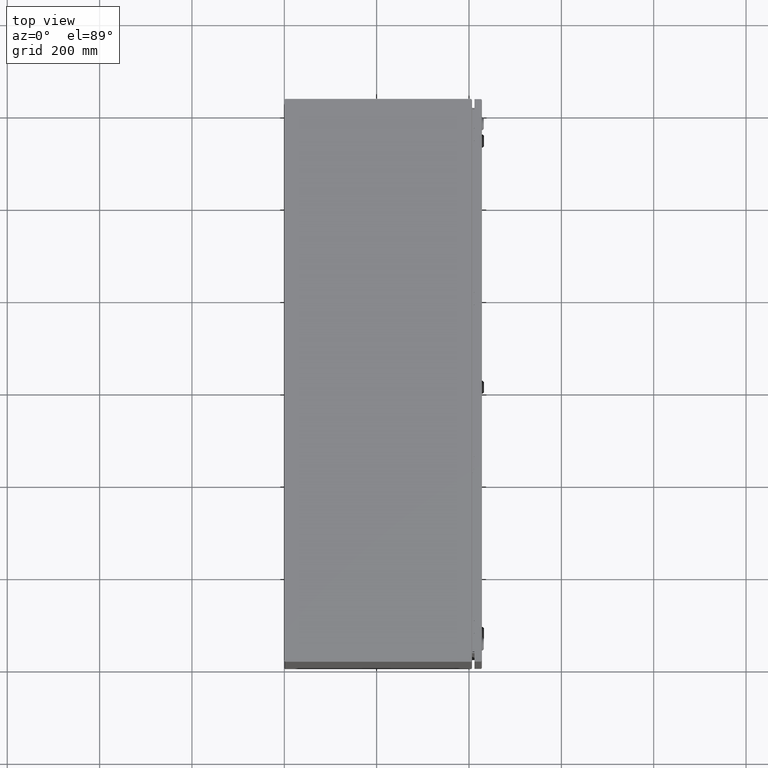
[diagram: clean part render]
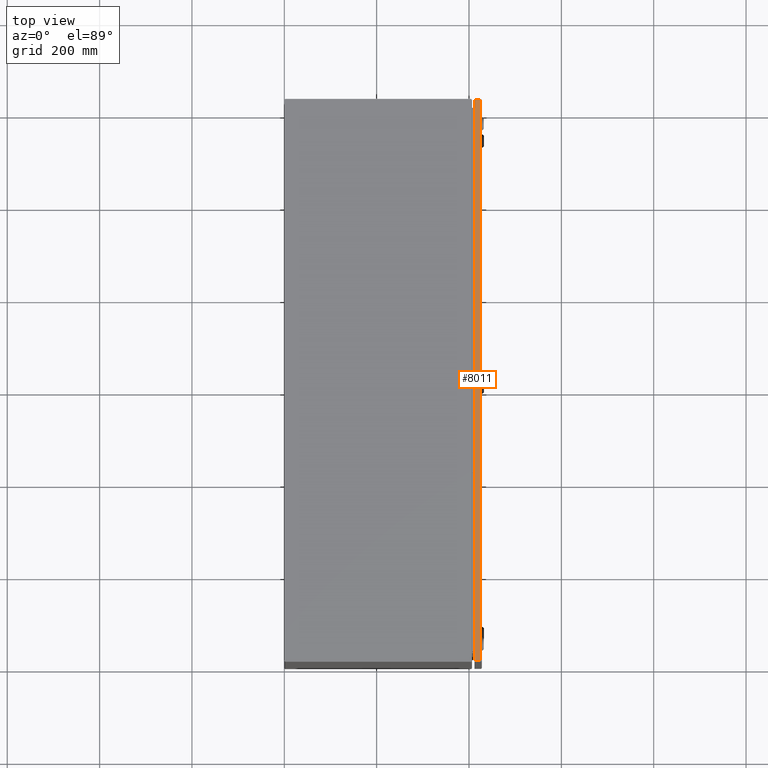
[diagram: same view with one face highlighted and labeled with its STEP entity id]
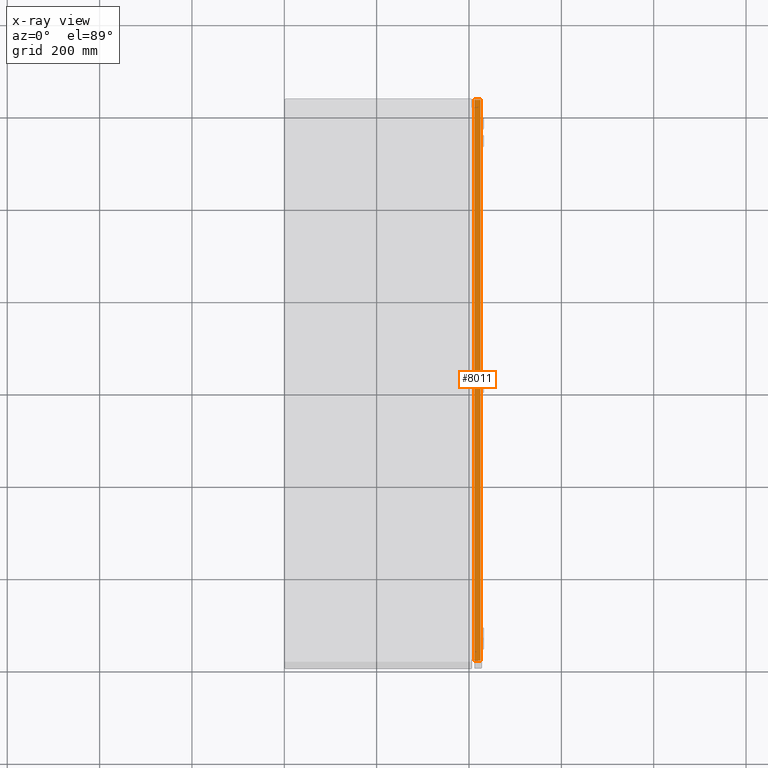
[diagram: x-ray of the same camera — body ghosted, the highlighted face saturated]
A machine part, top view. The second image highlights one B-rep face of the part: STEP entity #8011.
The next image is the same camera in x-ray: the body ghosted, the highlighted face saturated — about 0% of this face is hidden behind the body in this view.
In plain terms, the highlighted planar face has unit normal (-0, -0, 1).
Its self-contained STEP definition (entity closure, byte-faithful):
#49 = VECTOR ( 'NONE', #32522, 39.37007874015748143 ) ;
#1917 = VECTOR ( 'NONE', #10179, 39.37007874015748143 ) ;
#2729 = CARTESIAN_POINT ( 'NONE',  ( -17.99600000000002709, -16.21700000000004138, -23.91242125984251388 ) ) ;
#2905 = CARTESIAN_POINT ( 'NONE',  ( -17.99600000000002709, -16.73400000000007992, 23.91242125984251388 ) ) ;
#5021 = VERTEX_POINT ( 'NONE', #2905 ) ;
#8011 = ADVANCED_FACE ( 'NONE', ( #30320 ), #79288, .T. ) ;
#9472 = AXIS2_PLACEMENT_3D ( 'NONE', #25763, #72581, #85955 ) ;
#10179 = DIRECTION ( 'NONE',  ( 0.0000000000000000000, -0.0000000000000000000, -1.000000000000000000 ) ) ;
#13552 = LINE ( 'NONE', #82991, #22993 ) ;
#13718 = LINE ( 'NONE', #72551, #49 ) ;
#18463 = EDGE_CURVE ( 'NONE', #5021, #34406, #85076, .T. ) ;
#22993 = VECTOR ( 'NONE', #76603, 39.37007874015748143 ) ;
#24333 = ORIENTED_EDGE ( 'NONE', *, *, #35438, .F. ) ;
#25763 = CARTESIAN_POINT ( 'NONE',  ( -17.99600000000002709, -16.77950000000004138, -23.87650000000000361 ) ) ;
#28629 = VERTEX_POINT ( 'NONE', #2729 ) ;
#30136 = CARTESIAN_POINT ( 'NONE',  ( -17.99600000000002709, -16.21700000000004138, 23.87650000000000361 ) ) ;
#30320 = FACE_OUTER_BOUND ( 'NONE', #43526, .T. ) ;
#31567 = CARTESIAN_POINT ( 'NONE',  ( -17.99600000000002709, -16.77950000000004138, 23.91242125984251743 ) ) ;
#32419 = CARTESIAN_POINT ( 'NONE',  ( -17.99600000000002709, -16.73400000000006216, -23.91242125984251743 ) ) ;
#32522 = DIRECTION ( 'NONE',  ( 0.0000000000000000000, -1.000000000000000000, -0.0000000000000000000 ) ) ;
#34406 = VERTEX_POINT ( 'NONE', #44676 ) ;
#35044 = EDGE_CURVE ( 'NONE', #28629, #67886, #13718, .T. ) ;
#35438 = EDGE_CURVE ( 'NONE', #5021, #67886, #13552, .T. ) ;
#43526 = EDGE_LOOP ( 'NONE', ( #24333, #51424, #72515, #84316 ) ) ;
#44676 = CARTESIAN_POINT ( 'NONE',  ( -17.99600000000002709, -16.21700000000004138, 23.91242125984251743 ) ) ;
#47523 = VECTOR ( 'NONE', #78290, 39.37007874015748143 ) ;
#48670 = EDGE_CURVE ( 'NONE', #34406, #28629, #55417, .T. ) ;
#51424 = ORIENTED_EDGE ( 'NONE', *, *, #18463, .T. ) ;
#55417 = LINE ( 'NONE', #30136, #1917 ) ;
#67886 = VERTEX_POINT ( 'NONE', #32419 ) ;
#72515 = ORIENTED_EDGE ( 'NONE', *, *, #48670, .T. ) ;
#72551 = CARTESIAN_POINT ( 'NONE',  ( -17.99600000000002709, -16.21700000000004138, -23.91242125984251743 ) ) ;
#72581 = DIRECTION ( 'NONE',  ( -1.000000000000000000, 6.123031769111889989E-17, 0.0000000000000000000 ) ) ;
#76603 = DIRECTION ( 'NONE',  ( -0.0000000000000000000, -6.123031769111889989E-17, -1.000000000000000000 ) ) ;
#78290 = DIRECTION ( 'NONE',  ( 0.0000000000000000000, 1.000000000000000000, 0.0000000000000000000 ) ) ;
#79288 = PLANE ( 'NONE',  #9472 ) ;
#82991 = CARTESIAN_POINT ( 'NONE',  ( -17.99600000000002709, -16.73400000000008347, -23.87650000000000361 ) ) ;
#84316 = ORIENTED_EDGE ( 'NONE', *, *, #35044, .T. ) ;
#85076 = LINE ( 'NONE', #31567, #47523 ) ;
#85955 = DIRECTION ( 'NONE',  ( -6.123031769111889989E-17, -1.000000000000000000, 0.0000000000000000000 ) ) ;